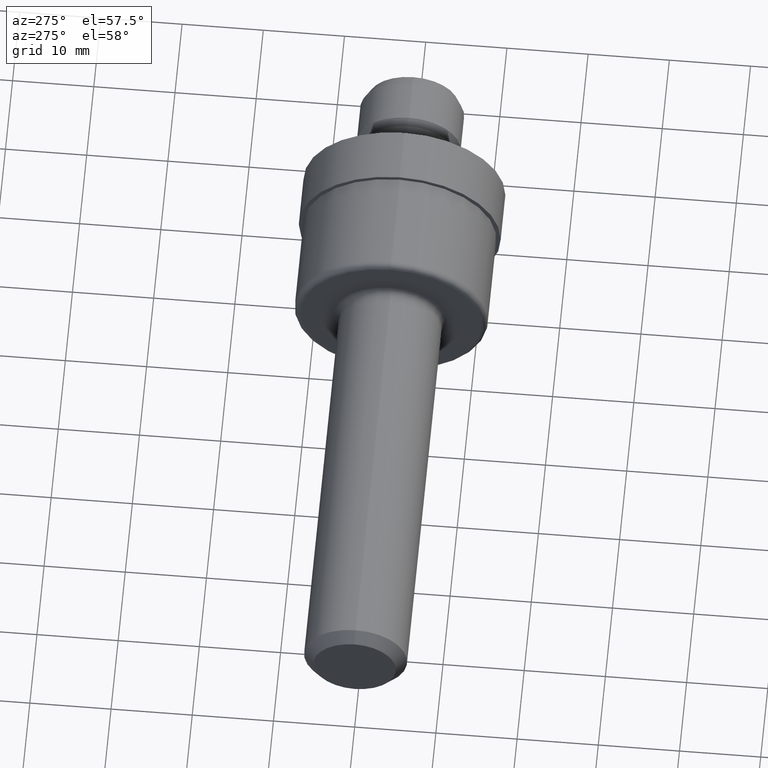
[diagram: clean part render]
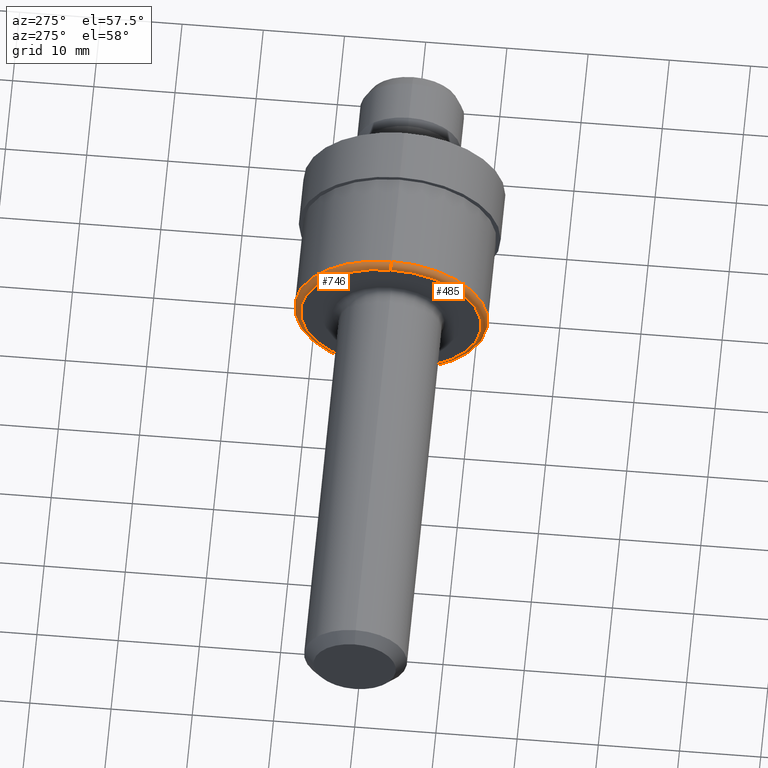
[diagram: same view with one multi-face feature highlighted, each face labeled with its STEP entity id]
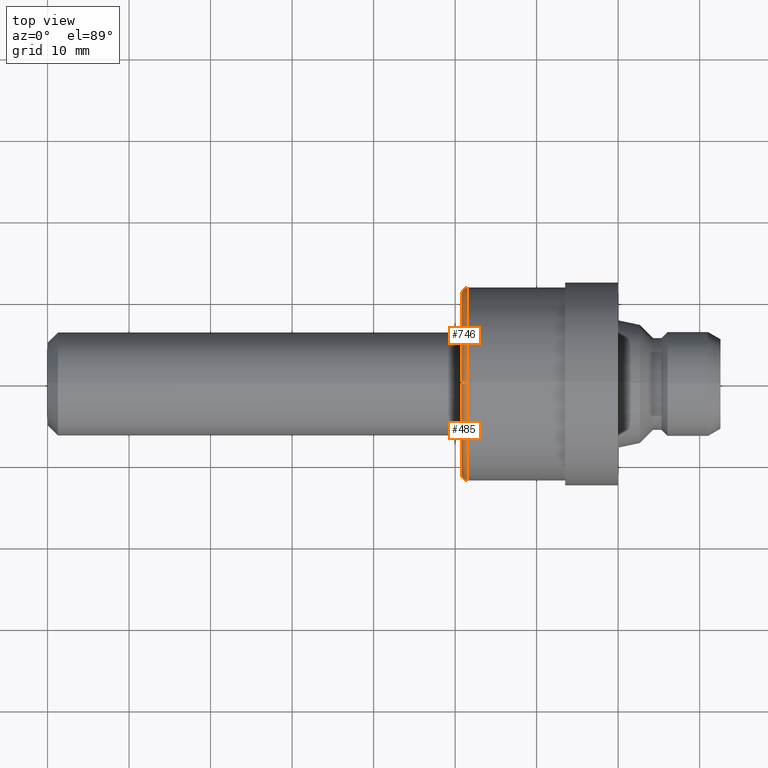
[diagram: same view with one multi-face feature highlighted, each face labeled with its STEP entity id]
A machine part, auxiliary view. The highlighted faces form ONE feature: a constant-radius fillet chain: 2 tangent blend faces with common blend radius 0.762 mm. The faces share edges in the B-rep.
A second angle (top view) of the same feature is appended — it is thin or edge-on in the first view.
Their STEP definitions:
[1] entity #485 (Torus):
#28 = EDGE_CURVE ( 'NONE', #796, #611, #743, .T. ) ;
#39 = CARTESIAN_POINT ( 'NONE',  ( 2.029999999999999805, 0.0000000000000000000, 0.0000000000000000000 ) ) ;
#70 = DIRECTION ( 'NONE',  ( 0.0000000000000000000, 0.0000000000000000000, 1.000000000000000000 ) ) ;
#79 = ORIENTED_EDGE ( 'NONE', *, *, #322, .T. ) ;
#90 = EDGE_CURVE ( 'NONE', #796, #148, #168, .T. ) ;
#101 = FACE_OUTER_BOUND ( 'NONE', #261, .T. ) ;
#107 = DIRECTION ( 'NONE',  ( 0.0000000000000000000, 0.0000000000000000000, 1.000000000000000000 ) ) ;
#122 = DIRECTION ( 'NONE',  ( -1.000000000000000000, -0.0000000000000000000, -0.0000000000000000000 ) ) ;
#148 = VERTEX_POINT ( 'NONE', #170 ) ;
#165 = CARTESIAN_POINT ( 'NONE',  ( 2.029999999999999805, 5.370076214261143632E-17, -0.4385000000000000009 ) ) ;
#168 = CIRCLE ( 'NONE', #614, 0.4684999999999999165 ) ;
#169 = ORIENTED_EDGE ( 'NONE', *, *, #828, .F. ) ;
#170 = CARTESIAN_POINT ( 'NONE',  ( 2.029999999999999805, 0.0000000000000000000, 0.4684999999999999165 ) ) ;
#200 = AXIS2_PLACEMENT_3D ( 'NONE', #165, #620, #228 ) ;
#228 = DIRECTION ( 'NONE',  ( 0.0000000000000000000, -1.224646799147354933E-16, 1.000000000000000000 ) ) ;
#235 = AXIS2_PLACEMENT_3D ( 'NONE', #648, #464, #70 ) ;
#261 = EDGE_LOOP ( 'NONE', ( #413, #565, #79, #169 ) ) ;
#273 = DIRECTION ( 'NONE',  ( 0.0000000000000000000, 0.0000000000000000000, -1.000000000000000000 ) ) ;
#279 = CARTESIAN_POINT ( 'NONE',  ( 2.000000000000000000, 5.553773234133246207E-17, -0.4385000000000000009 ) ) ;
#322 = EDGE_CURVE ( 'NONE', #148, #622, #680, .T. ) ;
#338 = CARTESIAN_POINT ( 'NONE',  ( 2.029999999999999805, 0.0000000000000000000, 0.4385000000000000009 ) ) ;
#413 = ORIENTED_EDGE ( 'NONE', *, *, #28, .F. ) ;
#440 = CARTESIAN_POINT ( 'NONE',  ( 2.029999999999999805, 0.0000000000000000000, 0.0000000000000000000 ) ) ;
#464 = DIRECTION ( 'NONE',  ( -1.000000000000000000, -0.0000000000000000000, -0.0000000000000000000 ) ) ;
#485 = ADVANCED_FACE ( 'NONE', ( #101 ), #799, .T. ) ;
#498 = DIRECTION ( 'NONE',  ( -1.000000000000000000, -0.0000000000000000000, -0.0000000000000000000 ) ) ;
#546 = AXIS2_PLACEMENT_3D ( 'NONE', #440, #122, #570 ) ;
#565 = ORIENTED_EDGE ( 'NONE', *, *, #90, .T. ) ;
#570 = DIRECTION ( 'NONE',  ( 0.0000000000000000000, 0.0000000000000000000, 1.000000000000000000 ) ) ;
#600 = CIRCLE ( 'NONE', #235, 0.4385000000000000009 ) ;
#611 = VERTEX_POINT ( 'NONE', #279 ) ;
#614 = AXIS2_PLACEMENT_3D ( 'NONE', #39, #498, #107 ) ;
#620 = DIRECTION ( 'NONE',  ( -0.0000000000000000000, 1.000000000000000000, 1.224646799147353207E-16 ) ) ;
#622 = VERTEX_POINT ( 'NONE', #737 ) ;
#648 = CARTESIAN_POINT ( 'NONE',  ( 2.000000000000000000, 0.0000000000000000000, 0.0000000000000000000 ) ) ;
#680 = CIRCLE ( 'NONE', #684, 0.02999999999999995379 ) ;
#684 = AXIS2_PLACEMENT_3D ( 'NONE', #338, #733, #273 ) ;
#733 = DIRECTION ( 'NONE',  ( 0.0000000000000000000, -1.000000000000000000, 0.0000000000000000000 ) ) ;
#737 = CARTESIAN_POINT ( 'NONE',  ( 2.000000000000000000, 0.0000000000000000000, 0.4385000000000000009 ) ) ;
#743 = CIRCLE ( 'NONE', #200, 0.02999999999999995379 ) ;
#782 = CARTESIAN_POINT ( 'NONE',  ( 2.029999999999999805, 5.737470254005348781E-17, -0.4684999999999999165 ) ) ;
#796 = VERTEX_POINT ( 'NONE', #782 ) ;
#799 = TOROIDAL_SURFACE ( 'NONE', #546, 0.4385000000000000009, 0.02999999999999998848 ) ;
#828 = EDGE_CURVE ( 'NONE', #611, #622, #600, .T. ) ;
[2] entity #746 (Torus):
#6 = DIRECTION ( 'NONE',  ( 0.0000000000000000000, 0.0000000000000000000, 1.000000000000000000 ) ) ;
#16 = DIRECTION ( 'NONE',  ( -1.000000000000000000, -0.0000000000000000000, -0.0000000000000000000 ) ) ;
#22 = AXIS2_PLACEMENT_3D ( 'NONE', #601, #16, #535 ) ;
#28 = EDGE_CURVE ( 'NONE', #796, #611, #743, .T. ) ;
#57 = DIRECTION ( 'NONE',  ( -1.000000000000000000, -0.0000000000000000000, -0.0000000000000000000 ) ) ;
#74 = CARTESIAN_POINT ( 'NONE',  ( 2.029999999999999805, 0.0000000000000000000, 0.0000000000000000000 ) ) ;
#108 = AXIS2_PLACEMENT_3D ( 'NONE', #516, #57, #451 ) ;
#148 = VERTEX_POINT ( 'NONE', #170 ) ;
#165 = CARTESIAN_POINT ( 'NONE',  ( 2.029999999999999805, 5.370076214261143632E-17, -0.4385000000000000009 ) ) ;
#170 = CARTESIAN_POINT ( 'NONE',  ( 2.029999999999999805, 0.0000000000000000000, 0.4684999999999999165 ) ) ;
#200 = AXIS2_PLACEMENT_3D ( 'NONE', #165, #620, #228 ) ;
#204 = CIRCLE ( 'NONE', #108, 0.4385000000000000009 ) ;
#228 = DIRECTION ( 'NONE',  ( 0.0000000000000000000, -1.224646799147354933E-16, 1.000000000000000000 ) ) ;
#273 = DIRECTION ( 'NONE',  ( 0.0000000000000000000, 0.0000000000000000000, -1.000000000000000000 ) ) ;
#279 = CARTESIAN_POINT ( 'NONE',  ( 2.000000000000000000, 5.553773234133246207E-17, -0.4385000000000000009 ) ) ;
#322 = EDGE_CURVE ( 'NONE', #148, #622, #680, .T. ) ;
#338 = CARTESIAN_POINT ( 'NONE',  ( 2.029999999999999805, 0.0000000000000000000, 0.4385000000000000009 ) ) ;
#357 = EDGE_CURVE ( 'NONE', #148, #796, #475, .T. ) ;
#417 = ORIENTED_EDGE ( 'NONE', *, *, #28, .T. ) ;
#424 = EDGE_CURVE ( 'NONE', #622, #611, #204, .T. ) ;
#431 = ORIENTED_EDGE ( 'NONE', *, *, #357, .T. ) ;
#451 = DIRECTION ( 'NONE',  ( 0.0000000000000000000, 0.0000000000000000000, 1.000000000000000000 ) ) ;
#471 = DIRECTION ( 'NONE',  ( -1.000000000000000000, -0.0000000000000000000, -0.0000000000000000000 ) ) ;
#472 = FACE_OUTER_BOUND ( 'NONE', #749, .T. ) ;
#475 = CIRCLE ( 'NONE', #777, 0.4684999999999999165 ) ;
#484 = ORIENTED_EDGE ( 'NONE', *, *, #322, .F. ) ;
#512 = ORIENTED_EDGE ( 'NONE', *, *, #424, .F. ) ;
#516 = CARTESIAN_POINT ( 'NONE',  ( 2.000000000000000000, 0.0000000000000000000, 0.0000000000000000000 ) ) ;
#535 = DIRECTION ( 'NONE',  ( 0.0000000000000000000, 0.0000000000000000000, 1.000000000000000000 ) ) ;
#601 = CARTESIAN_POINT ( 'NONE',  ( 2.029999999999999805, 0.0000000000000000000, 0.0000000000000000000 ) ) ;
#611 = VERTEX_POINT ( 'NONE', #279 ) ;
#620 = DIRECTION ( 'NONE',  ( -0.0000000000000000000, 1.000000000000000000, 1.224646799147353207E-16 ) ) ;
#622 = VERTEX_POINT ( 'NONE', #737 ) ;
#680 = CIRCLE ( 'NONE', #684, 0.02999999999999995379 ) ;
#684 = AXIS2_PLACEMENT_3D ( 'NONE', #338, #733, #273 ) ;
#733 = DIRECTION ( 'NONE',  ( 0.0000000000000000000, -1.000000000000000000, 0.0000000000000000000 ) ) ;
#737 = CARTESIAN_POINT ( 'NONE',  ( 2.000000000000000000, 0.0000000000000000000, 0.4385000000000000009 ) ) ;
#743 = CIRCLE ( 'NONE', #200, 0.02999999999999995379 ) ;
#746 = ADVANCED_FACE ( 'NONE', ( #472 ), #784, .T. ) ;
#749 = EDGE_LOOP ( 'NONE', ( #431, #417, #512, #484 ) ) ;
#777 = AXIS2_PLACEMENT_3D ( 'NONE', #74, #471, #6 ) ;
#782 = CARTESIAN_POINT ( 'NONE',  ( 2.029999999999999805, 5.737470254005348781E-17, -0.4684999999999999165 ) ) ;
#784 = TOROIDAL_SURFACE ( 'NONE', #22, 0.4385000000000000009, 0.02999999999999998848 ) ;
#796 = VERTEX_POINT ( 'NONE', #782 ) ;